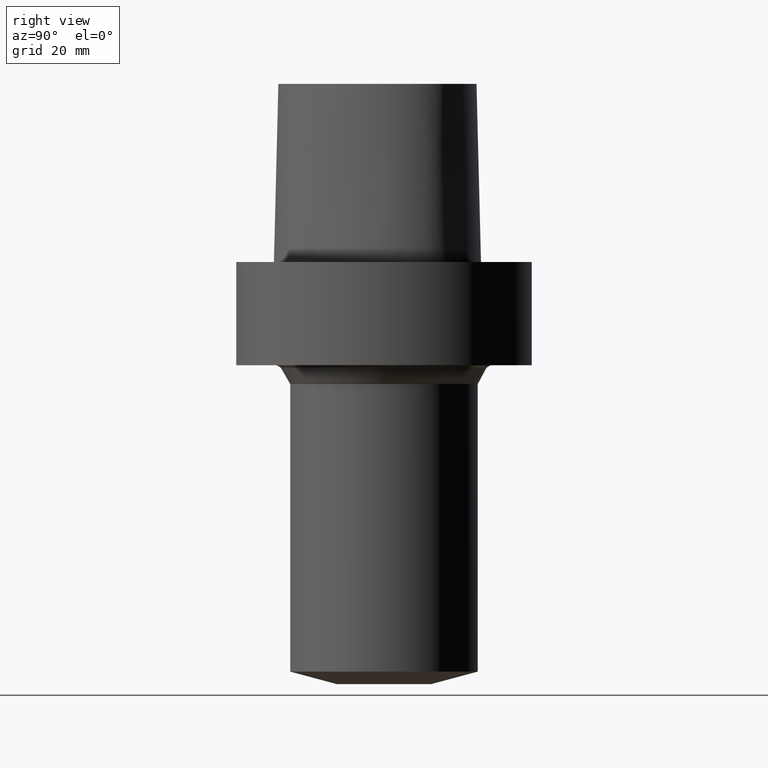
[diagram: clean part render]
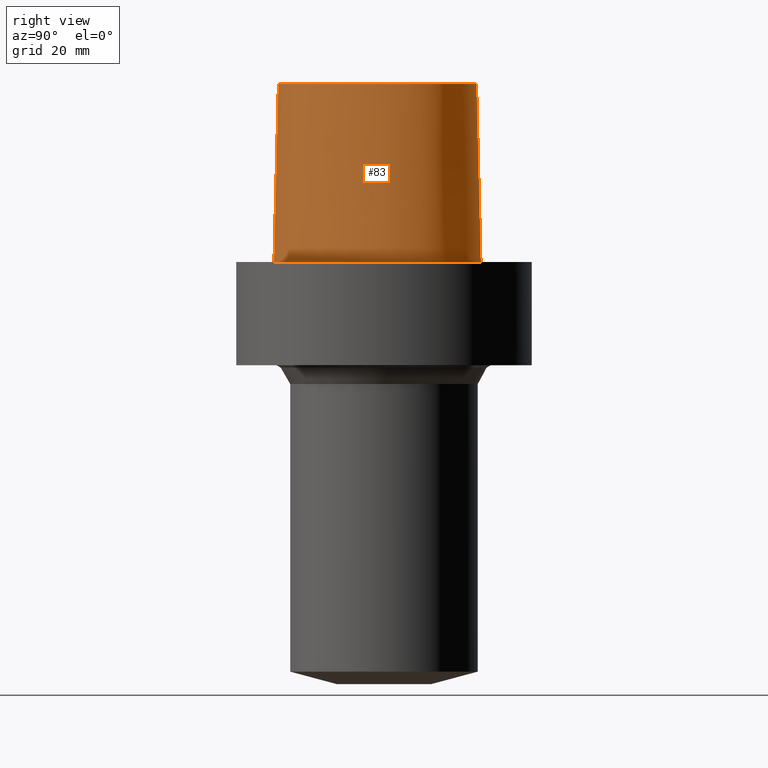
[diagram: same view with one face highlighted and labeled with its STEP entity id]
A machine part, right view. The second image highlights one B-rep face of the part: STEP entity #83.
In plain terms, the highlighted face is a freeform B-spline surface patch.
Its self-contained STEP definition (entity closure, byte-faithful):
#83=ADVANCED_FACE('',(#111),#112,.T.);
#111=FACE_OUTER_BOUND('',#142,.T.);
#112=B_SPLINE_SURFACE_WITH_KNOTS('',3,3,((#143,#144,#145,#146),(#147,#148,#149,#150),(#151,#152,#153,#154),(#155,#156,#157,#158),(#159,#160,#161,#162),(#163,#164,#165,#166),(#167,#168,#169,#170),(#171,#172,#173,#174),(#175,#176,#177,#178),(#179,#180,#181,#182),(#183,#184,#185,#186),(#187,#188,#189,#190),(#191,#192,#193,#194),(#195,#196,#197,#198),(#199,#200,#201,#202),(#203,#204,#205,#206),(#207,#208,#209,#210)),.UNSPECIFIED.,.F.,.F.,.F.,(4,1,1,1,1,1,1,1,1,1,1,1,1,1,4),(4,4),(-13.2302678617486,-12.816821991069,-12.4033761203893,-11.9899302497097,-11.57648437903,-11.1630385083504,-10.9563155730106,-10.7495926376707,-10.3361467669911,-9.92270089631145,-9.09580915495216,-8.26891741359287,-7.44202567223358,-7.02857980155394,-6.6151339308743),(-3.8,0.0),.UNSPECIFIED.);
#142=EDGE_LOOP('',(#329,#330,#331,#332));
#143=CARTESIAN_POINT('',(-0.001218367817519,19.7276822012873,38.0));
#144=CARTESIAN_POINT('',(0.014082083248157,20.0439577123075,25.3333333333066));
#145=CARTESIAN_POINT('',(0.029382534313671,20.3602332232908,12.6666666666934));
#146=CARTESIAN_POINT('',(0.044682985379347,20.6765087343109,0.0));
#147=CARTESIAN_POINT('',(1.37788651195108,19.6609652834875,38.0));
#148=CARTESIAN_POINT('',(1.3931885827258,19.9772407169847,25.3333333333066));
#149=CARTESIAN_POINT('',(1.40849065356095,20.2935162254648,12.6666666666934));
#150=CARTESIAN_POINT('',(1.42379272427753,20.6097915814392,0.0));
#151=CARTESIAN_POINT('',(4.135446440878,19.5347778787784,38.0));
#152=CARTESIAN_POINT('',(4.16466278851883,19.8511031866125,25.3333333333066));
#153=CARTESIAN_POINT('',(4.1938791526746,20.1674284644204,12.6666666666934));
#154=CARTESIAN_POINT('',(4.2230955003445,20.4837538303966,0.0));
#155=CARTESIAN_POINT('',(8.213607363795,18.7706026638736,38.0));
#156=CARTESIAN_POINT('',(8.29980745008421,19.0767495109635,25.3333333333066));
#157=CARTESIAN_POINT('',(8.38600751285747,19.3828964329996,12.6666666666934));
#158=CARTESIAN_POINT('',(8.47220762821777,19.6890432607088,0.0));
#159=CARTESIAN_POINT('',(12.1316338645671,17.3698624840857,38.0));
#160=CARTESIAN_POINT('',(12.2591308270381,17.6610739397708,25.3333333333066));
#161=CARTESIAN_POINT('',(12.3866278083543,17.9522853923553,12.6666666666934));
#162=CARTESIAN_POINT('',(12.5141247708253,18.2434968480404,0.0));
#163=CARTESIAN_POINT('',(15.7706546153679,15.3789501349612,38.0));
#164=CARTESIAN_POINT('',(15.9483905900895,15.6437731794811,25.3333333333066));
#165=CARTESIAN_POINT('',(16.1261265513272,15.9085961736944,12.6666666666934));
#166=CARTESIAN_POINT('',(16.3038624872874,16.1734192182143,0.0));
#167=CARTESIAN_POINT('',(18.4265894256284,13.0570022172893,38.0));
#168=CARTESIAN_POINT('',(18.6659567517146,13.2725589420689,25.3333333333066));
#169=CARTESIAN_POINT('',(18.9053240921419,13.4881156488541,12.6666666666934));
#170=CARTESIAN_POINT('',(19.1446913988473,13.7036723639434,0.0));
#171=CARTESIAN_POINT('',(19.8679958653038,10.6923771981998,38.0));
#172=CARTESIAN_POINT('',(20.1559937048299,10.8287388264873,25.3333333333066));
#173=CARTESIAN_POINT('',(20.4439915656177,10.965100461641,12.6666666666934));
#174=CARTESIAN_POINT('',(20.7319894342149,11.1014620996188,0.0));
#175=CARTESIAN_POINT('',(20.8470867582337,8.07149548576131,38.0));
#176=CARTESIAN_POINT('',(21.1591164072431,8.14132775555392,25.3333333333066));
#177=CARTESIAN_POINT('',(21.4711459821861,8.21116003697855,12.6666666666934));
#178=CARTESIAN_POINT('',(21.7831756505763,8.28099229708081,0.0));
#179=CARTESIAN_POINT('',(21.2693244256982,4.61157245650171,38.0));
#180=CARTESIAN_POINT('',(21.5881576801997,4.6105997689982,25.3333333333066));
#181=CARTESIAN_POINT('',(21.9069908544037,4.60962709346857,12.6666666666934));
#182=CARTESIAN_POINT('',(22.2258240701438,4.60865440596506,0.0));
#183=CARTESIAN_POINT('',(20.8071610855575,-0.912828649855193,38.0));
#184=CARTESIAN_POINT('',(21.119311671178,-0.979640884839481,25.3333333333066));
#185=CARTESIAN_POINT('',(21.4314624224461,-1.04645306732201,12.6666666666934));
#186=CARTESIAN_POINT('',(21.7436130080666,-1.11326526354485,0.0));
#187=CARTESIAN_POINT('',(18.6841935581315,-7.54428794252837,38.0));
#188=CARTESIAN_POINT('',(18.9734452551861,-7.6809665891091,25.3333333333066));
#189=CARTESIAN_POINT('',(19.2626970689956,-7.81764505382656,12.6666666666934));
#190=CARTESIAN_POINT('',(19.5519487660502,-7.95432366164584,0.0));
#191=CARTESIAN_POINT('',(14.2175552814,-14.5971504342323,38.0));
#192=CARTESIAN_POINT('',(14.4641757465198,-14.8010930946929,25.3333333333066));
#193=CARTESIAN_POINT('',(14.710796247264,-15.0050359737917,12.6666666666934));
#194=CARTESIAN_POINT('',(14.9574167123838,-15.2089785567293,0.0));
#195=CARTESIAN_POINT('',(9.0844808732933,-19.3179298129689,38.0));
#196=CARTESIAN_POINT('',(9.27912152349017,-19.572866915557,25.3333333333066));
#197=CARTESIAN_POINT('',(9.47376218971294,-19.827804295621,12.6666666666934));
#198=CARTESIAN_POINT('',(9.66840283021945,-20.0827414369705,0.0));
#199=CARTESIAN_POINT('',(4.17112919194182,-21.8987568152736,38.0));
#200=CARTESIAN_POINT('',(4.28618163483998,-22.1973837173649,25.3333333333066));
#201=CARTESIAN_POINT('',(4.40123406239433,-22.4960105163661,12.6666666666934));
#202=CARTESIAN_POINT('',(4.51628650521788,-22.7946374572188,0.0));
#203=CARTESIAN_POINT('',(1.41533654381097,-22.5120888467812,38.0));
#204=CARTESIAN_POINT('',(1.46311520162011,-22.8284916374445,25.3333333333066));
#205=CARTESIAN_POINT('',(1.51089385942236,-23.144894486341,12.6666666666934));
#206=CARTESIAN_POINT('',(1.55867251738073,-23.4612972770043,0.0));
#207=CARTESIAN_POINT('',(0.038736923393866,-22.5191997536361,38.0));
#208=CARTESIAN_POINT('',(0.04035580478973,-22.8358410047159,25.3333333333066));
#209=CARTESIAN_POINT('',(0.041974686185626,-23.1524822558133,12.6666666666934));
#210=CARTESIAN_POINT('',(0.04359356758149,-23.4691235068931,0.0));
#329=ORIENTED_EDGE('',*,*,#349,.T.);
#330=ORIENTED_EDGE('',*,*,#358,.F.);
#331=ORIENTED_EDGE('',*,*,#359,.F.);
#332=ORIENTED_EDGE('',*,*,#360,.T.);
#349=EDGE_CURVE('',#365,#366,#367,.T.);
#358=EDGE_CURVE('',#383,#366,#384,.T.);
#359=EDGE_CURVE('',#385,#383,#386,.T.);
#360=EDGE_CURVE('',#385,#365,#387,.T.);
#365=VERTEX_POINT('',#392);
#366=VERTEX_POINT('',#393);
#367=B_SPLINE_CURVE_WITH_KNOTS('',3,(#394,#395,#396,#397,#398,#399,#400,#401,#402,#403,#404,#405,#406,#407,#408,#409,#410,#411,#412,#413,#414,#415,#416,#417,#418,#419,#420,#421,#422,#423,#424,#425),.UNSPECIFIED.,.F.,.F.,(4,2,2,2,2,2,2,2,2,2,2,2,2,2,2,4),(6.6151339308743,6.90353802293409,7.19194211499389,7.48034620705369,7.76875029911348,8.3273781966476,8.88600609418171,10.0632582234986,10.5220146921826,10.9807711608666,11.2101493952086,11.4395276295506,11.8982840982346,12.4281394376607,12.8292036497046,13.2302678617486),.UNSPECIFIED.);
#383=VERTEX_POINT('',#470);
#384=LINE('',#471,#472);
#385=VERTEX_POINT('',#473);
#386=B_SPLINE_CURVE_WITH_KNOTS('',3,(#474,#475,#476,#477,#478,#479,#480,#481,#482,#483,#484,#485,#486,#487,#488,#489),.UNSPECIFIED.,.F.,.F.,(4,1,1,1,1,1,1,1,1,1,1,1,1,4),(6.61513393087475,6.99917207152274,7.48193246986995,7.96289324787093,8.45540287038584,9.10291653679981,9.67129810936083,10.1618749681153,10.6358867802489,11.1080734988593,11.6043706019633,12.09451993853,12.6985979284494,13.2302678617486),.UNSPECIFIED.);
#387=LINE('',#490,#491);
#392=CARTESIAN_POINT('',(0.04359356758149,-23.4691235068931,0.0));
#393=CARTESIAN_POINT('',(0.044682985379347,20.6765087343109,0.0));
#394=CARTESIAN_POINT('',(0.04359356758149,-23.4691235068931,0.0));
#395=CARTESIAN_POINT('',(1.1004598519742,-23.4637201011149,7.105427E-015));
#396=CARTESIAN_POINT('',(2.14400887535539,-23.2973076591387,0.0));
#397=CARTESIAN_POINT('',(4.1424681795584,-22.7592077909815,0.0));
#398=CARTESIAN_POINT('',(5.09815205870591,-22.390397570418,-7.105427E-015));
#399=CARTESIAN_POINT('',(6.9351099930747,-21.5078613163183,-7.105427E-015));
#400=CARTESIAN_POINT('',(7.80351845767777,-20.9996631554928,-7.105427E-015));
#401=CARTESIAN_POINT('',(9.46943987011575,-19.8886274331692,-7.105427E-015));
#402=CARTESIAN_POINT('',(10.2666299015956,-19.2853057570752,-7.105427E-015));
#403=CARTESIAN_POINT('',(12.5026318141948,-17.3963733278614,2.131628E-014));
#404=CARTESIAN_POINT('',(13.8422909676271,-16.0046937991299,0.0));
#405=CARTESIAN_POINT('',(16.2509822407142,-13.0101546997628,1.421085E-014));
#406=CARTESIAN_POINT('',(17.3206577927156,-11.4078127381174,-7.105427E-015));
#407=CARTESIAN_POINT('',(20.1948648257688,-6.17855164445771,-7.105427E-015));
#408=CARTESIAN_POINT('',(21.5264998810762,-2.27044916431131,-7.105427E-015));
#409=CARTESIAN_POINT('',(22.1083077940609,3.36511341978747,-7.105427E-015));
#410=CARTESIAN_POINT('',(22.1437891560423,4.95691742010578,-7.105427E-015));
#411=CARTESIAN_POINT('',(21.7438554055,8.21486313336421,-7.105427E-015));
#412=CARTESIAN_POINT('',(21.2813238062713,9.87761881981491,0.0));
#413=CARTESIAN_POINT('',(20.1794569882097,12.0317423962685,0.0));
#414=CARTESIAN_POINT('',(19.7024138468366,12.7593191234763,-7.105427E-015));
#415=CARTESIAN_POINT('',(18.6262164065722,14.0443851003557,-7.105427E-015));
#416=CARTESIAN_POINT('',(18.0388107856225,14.6116679410871,0.0));
#417=CARTESIAN_POINT('',(16.1284788612342,16.197117807416,7.105427E-015));
#418=CARTESIAN_POINT('',(14.7618818860482,17.03003182658,0.0));
#419=CARTESIAN_POINT('',(11.6856166176821,18.5458506425855,0.0));
#420=CARTESIAN_POINT('',(9.96274972961394,19.1800623227596,0.0));
#421=CARTESIAN_POINT('',(6.84723700488339,20.0025241142556,0.0));
#422=CARTESIAN_POINT('',(5.4719505740624,20.2496312304465,0.0));
#423=CARTESIAN_POINT('',(2.7387517037224,20.5467807312008,0.0));
#424=CARTESIAN_POINT('',(1.38248716057628,20.6117898211938,0.0));
#425=CARTESIAN_POINT('',(0.044682985379347,20.6765087343109,0.0));
#470=CARTESIAN_POINT('',(-0.001218547003662,19.7276821925089,38.0));
#471=CARTESIAN_POINT('',(-0.001218547003662,19.7276821925089,38.0));
#472=VECTOR('',#534,38.0118715503078);
#473=CARTESIAN_POINT('',(0.038736923393866,-22.5191997536361,38.0));
#474=CARTESIAN_POINT('',(0.038736923394311,-22.519199753636,38.0));
#475=CARTESIAN_POINT('',(1.31742058183662,-22.512662269405,38.0));
#476=CARTESIAN_POINT('',(4.2093773447498,-21.9116226439989,38.0));
#477=CARTESIAN_POINT('',(8.20895504542113,-19.7798683845067,38.0));
#478=CARTESIAN_POINT('',(11.9784633234593,-16.681663904162,38.0));
#479=CARTESIAN_POINT('',(15.5308821579362,-12.5807487594113,38.0));
#480=CARTESIAN_POINT('',(18.4566248438667,-7.64932246015528,38.0));
#481=CARTESIAN_POINT('',(20.4036090752029,-2.27012499825289,38.0));
#482=CARTESIAN_POINT('',(21.2357187429189,2.79891401173156,38.0));
#483=CARTESIAN_POINT('',(21.0811206267748,7.62543090736657,38.0));
#484=CARTESIAN_POINT('',(19.3383577336563,12.2772250726194,38.0));
#485=CARTESIAN_POINT('',(15.5796322014404,15.5799672120682,38.0));
#486=CARTESIAN_POINT('',(10.8392956074438,17.9834601687347,38.0));
#487=CARTESIAN_POINT('',(5.56068045850571,19.4586143858472,38.0));
#488=CARTESIAN_POINT('',(1.77223893711014,19.6418877095654,38.0));
#489=CARTESIAN_POINT('',(-0.001218367817519,19.7276822012873,38.0));
#490=CARTESIAN_POINT('',(0.038736923393866,-22.5191997536361,38.0));
#491=VECTOR('',#535,38.0118715498723);
#534=DIRECTION('',(0.001207557810519,0.024961321374199,-0.999687688350411));
#535=DIRECTION('',(0.000127766510556,-0.024990186342461,-0.999687688361864));